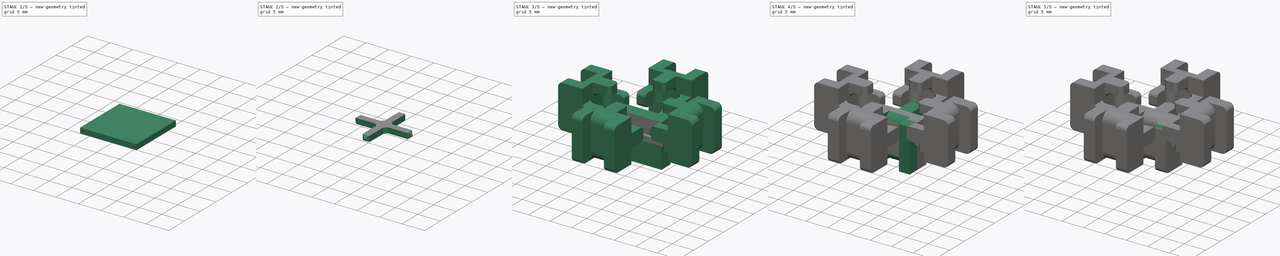
[diagram: build sequence overview — one tinted view per stage of 5, left to right]
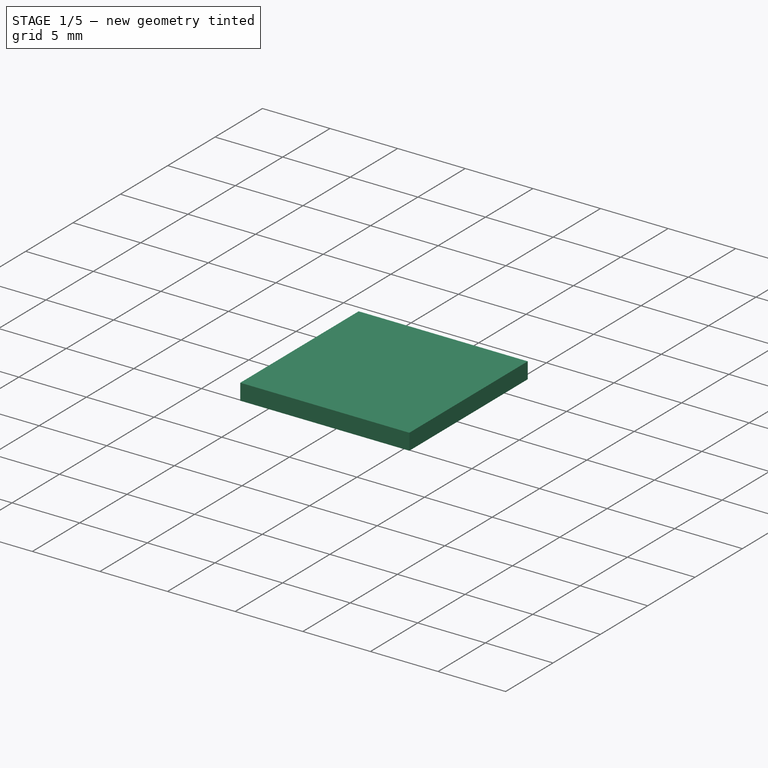
[diagram: stage 1 of 5 — iso view after this stage's code; geometry added in this stage tinted green]
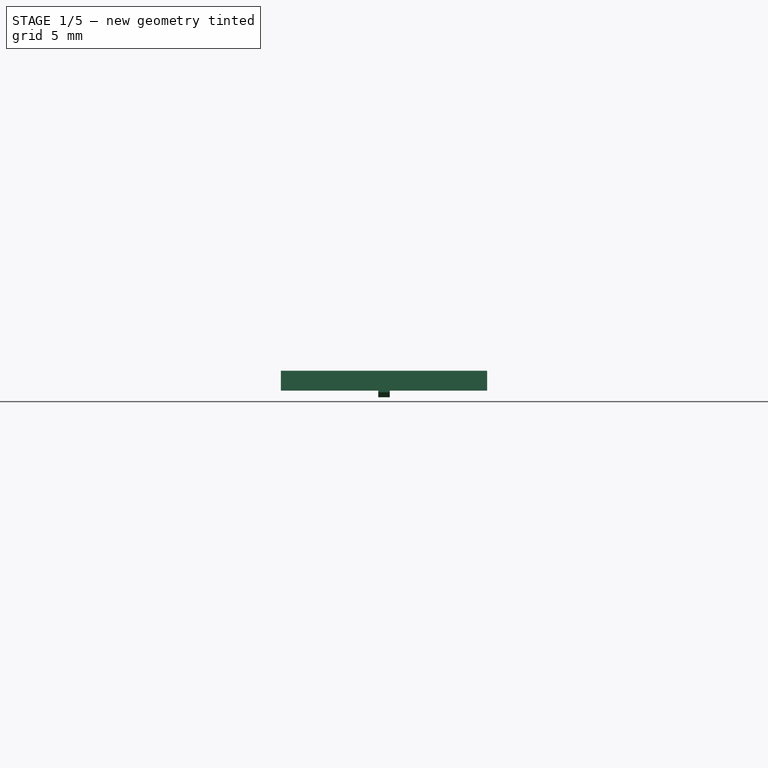
[diagram: stage 1 of 5 — front view after this stage's code; geometry added in this stage tinted green]
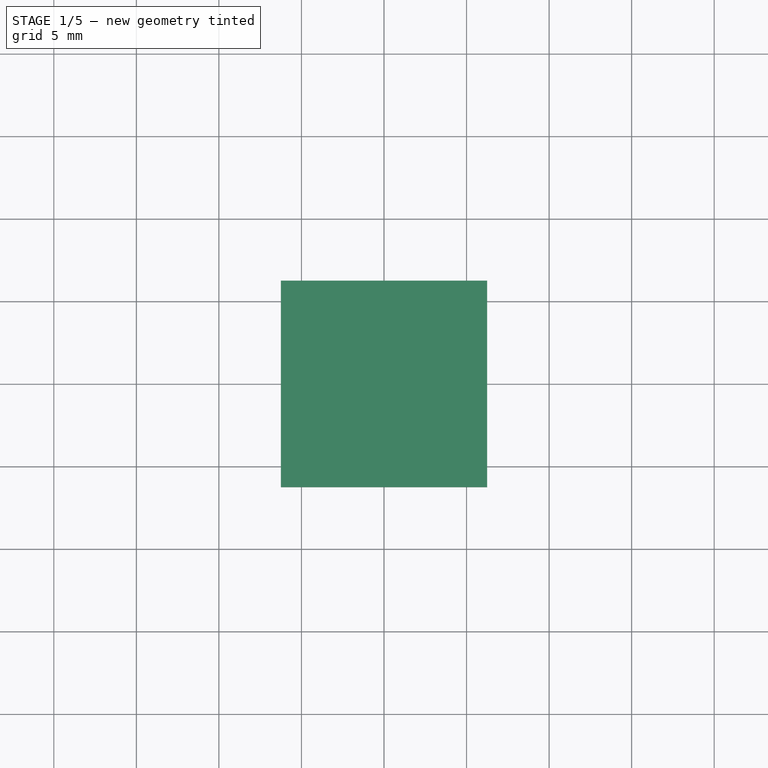
[diagram: stage 1 of 5 — top view after this stage's code; geometry added in this stage tinted green]
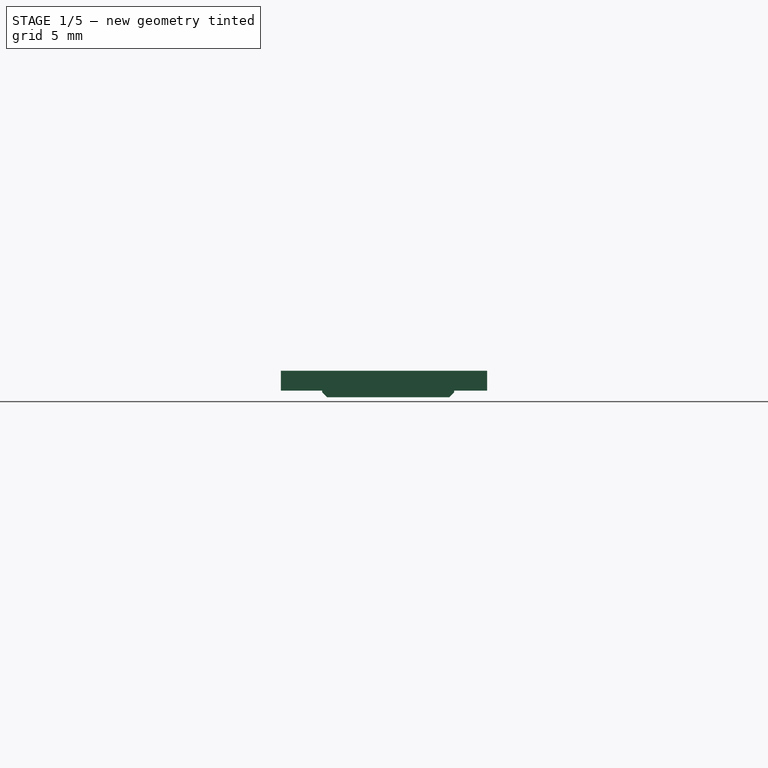
[diagram: stage 1 of 5 — right view after this stage's code; geometry added in this stage tinted green]
FCSTD DOCUMENT  (FreeCAD 0.14R3342 (Git))
Label: beam-stop
License: CC-BY 3.0
LicenseURL: http://creativecommons.org/licenses/by/3.0/
objects: Sketcher::SketchObject×4, PartDesign::Fillet×4, PartDesign::Pad×3, Part::Feature×3, PartDesign::Chamfer×3, Part::Box×2, Part::Fuse×2, Part::FeaturePython×1, PartDesign::Pocket×1
note: 27 computed .brp shape members not serialized (recipe doc carries the construction recipe); baked Part::Feature solids carry a one-line shape summary decoded from their .brp

FEATURE [Part::Box] Box001  label="Cube001"
  Height = 1.2
  Length = 12.5
  Placement = pos=(-6.25,-6.25,0.4) rot=(0,0,1;0rad)
  Width = 12.5
FEATURE [Sketcher::SketchObject] Sketch004
  Placement = pos=(-6.25,-6.25,0.4) rot=(1,0,0;3.14159rad)
  sketch-geometry (4):
    g0: LineSegment StartX=5.9 StartY=-2.5 StartZ=0 EndX=6.6 EndY=-2.5 EndZ=0
    g1: LineSegment StartX=6.6 StartY=-2.5 StartZ=0 EndX=6.6 EndY=-10.5 EndZ=0
    g2: LineSegment StartX=6.6 StartY=-10.5 StartZ=0 EndX=5.9 EndY=-10.5 EndZ=0
    g3: LineSegment StartX=5.9 StartY=-10.5 StartZ=0 EndX=5.9 EndY=-2.5 EndZ=0
  constraints (5):
    c: Coincident(g0,g1)
    c: Coincident(g1,g2)
    c: Coincident(g2,g3)
    c: Coincident(g3,g0)
    c: DistanceY(g-1,g0) = -2.5
FEATURE [PartDesign::Pad] Pad002
  Length = 0.4
  Length2 = 100
  Placement = pos=(-6.25,-6.25,0.4) rot=(1,0,0;3.14159rad)
  Sketch = -> Sketch004
  Type = 0
FEATURE [PartDesign::Chamfer] Chamfer002
  Base = -> Pad002 [Edge10,Edge4]
  Placement = pos=(-6.25,-6.25,0.4) rot=(1,0,0;3.14159rad)
  Size = 0.3
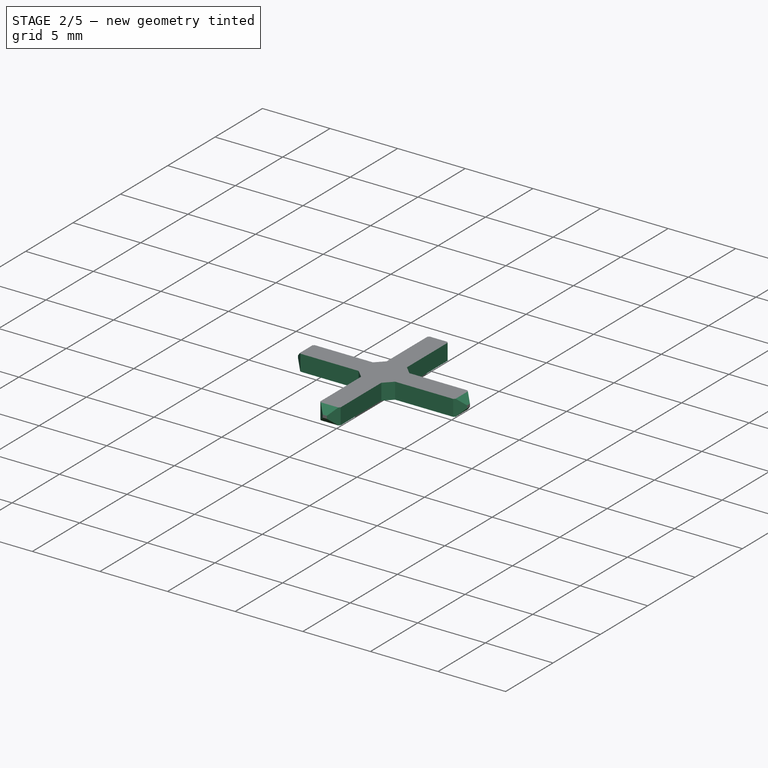
[diagram: stage 2 of 5 — iso view after this stage's code; geometry added in this stage tinted green]
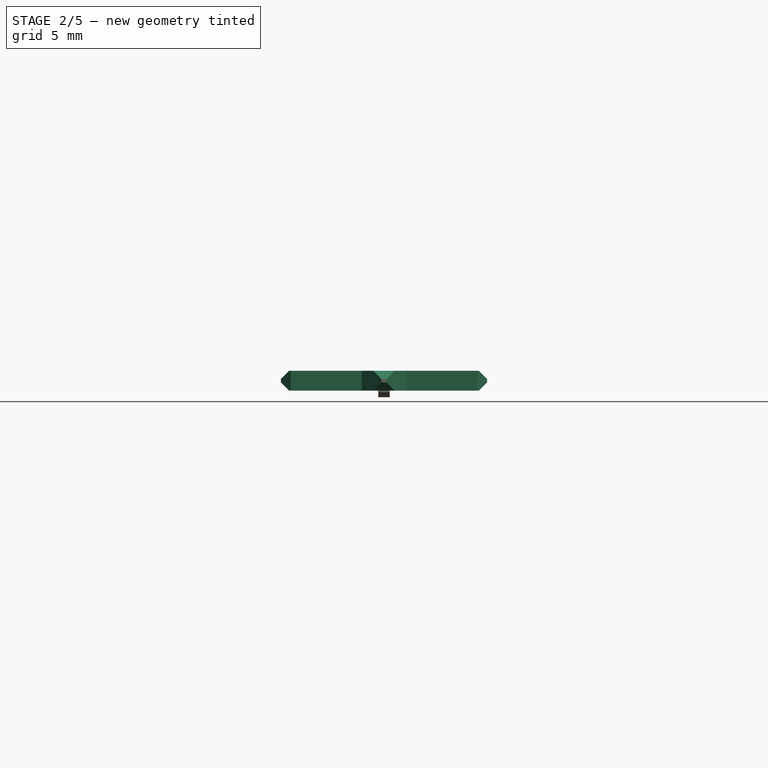
[diagram: stage 2 of 5 — front view after this stage's code; geometry added in this stage tinted green]
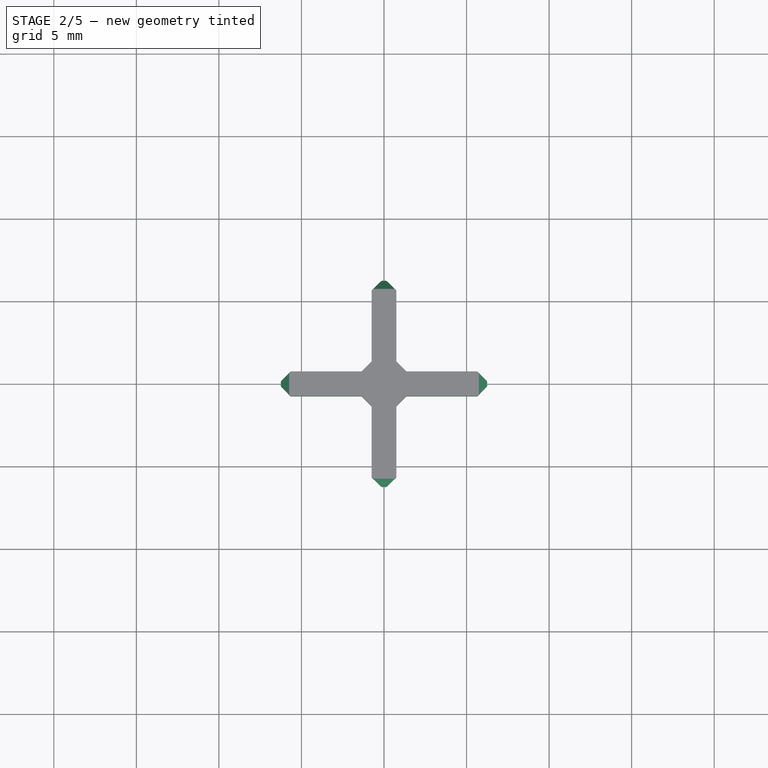
[diagram: stage 2 of 5 — top view after this stage's code; geometry added in this stage tinted green]
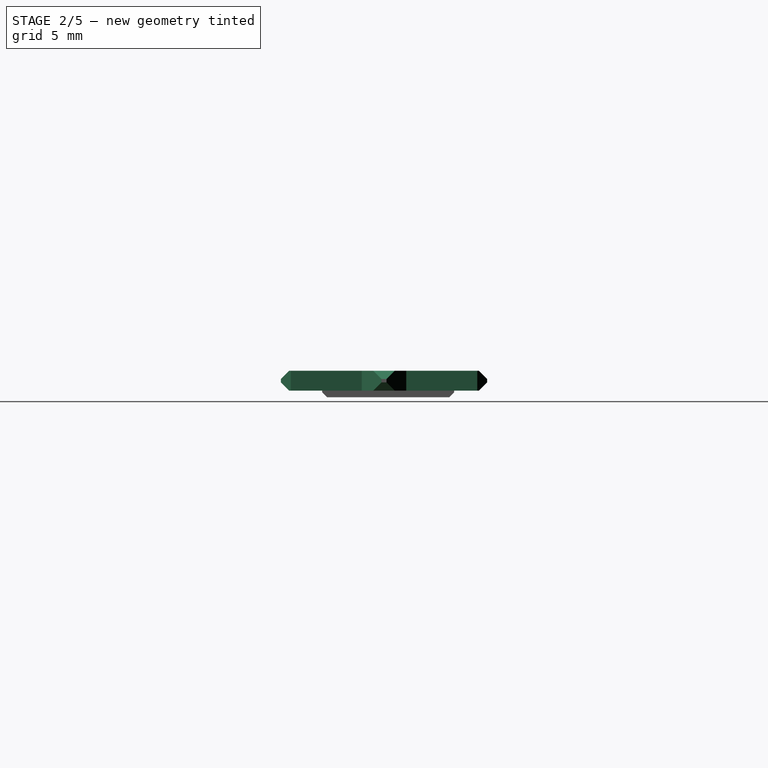
[diagram: stage 2 of 5 — right view after this stage's code; geometry added in this stage tinted green]
FEATURE [Sketcher::SketchObject] Sketch003
  ExternalGeometry = -> [Box001]
  Placement = pos=(-6.25,-6.25,0.4) rot=(1,0,0;3.14159rad)
  Support = -> Box001 [Face5]
  sketch-geometry (16):
    g0: LineSegment StartX=0 StartY=0 StartZ=0 EndX=5.5 EndY=0 EndZ=0
    g1: LineSegment StartX=5.5 StartY=0 StartZ=0 EndX=5.5 EndY=-5.5 EndZ=0
    g2: LineSegment StartX=5.5 StartY=-5.5 StartZ=0 EndX=0 EndY=-5.5 EndZ=0
    g3: LineSegment StartX=0 StartY=-5.5 StartZ=0 EndX=0 EndY=0 EndZ=0
    g4: LineSegment StartX=12.5 StartY=0 StartZ=0 EndX=7 EndY=0 EndZ=0
    g5: LineSegment StartX=7 StartY=0 StartZ=0 EndX=7 EndY=-5.5 EndZ=0
    g6: LineSegment StartX=7 StartY=-5.5 StartZ=0 EndX=12.5 EndY=-5.5 EndZ=0
    g7: LineSegment StartX=12.5 StartY=-5.5 StartZ=0 EndX=12.5 EndY=0 EndZ=0
    g8: LineSegment StartX=0 StartY=-12.5 StartZ=0 EndX=5.5 EndY=-12.5 EndZ=0
    g9: LineSegment StartX=5.5 StartY=-12.5 StartZ=0 EndX=5.5 EndY=-7 EndZ=0
    g10: LineSegment StartX=5.5 StartY=-7 StartZ=0 EndX=0 EndY=-7 EndZ=0
    g11: LineSegment StartX=0 StartY=-7 StartZ=0 EndX=0 EndY=-12.5 EndZ=0
    g12: LineSegment StartX=12.5 StartY=-12.5 StartZ=0 EndX=7 EndY=-12.5 EndZ=0
    g13: LineSegment StartX=7 StartY=-12.5 StartZ=0 EndX=7 EndY=-7 EndZ=0
    g14: LineSegment StartX=7 StartY=-7 StartZ=0 EndX=12.5 EndY=-7 EndZ=0
    g15: LineSegment StartX=12.5 StartY=-7 StartZ=0 EndX=12.5 EndY=-12.5 EndZ=0
  constraints (44):
    c: Coincident(g0,g1)
    c: Coincident(g1,g2)
    c: Coincident(g2,g3)
    c: Coincident(g3,g0)
    c: Horizontal(g0)
    c: Horizontal(g2)
    c: Vertical(g1)
    c: Vertical(g3)
    c: Coincident(g0,g-1)
    c: Coincident(g4,g5)
    c: Coincident(g5,g6)
    c: Coincident(g6,g7)
    c: Coincident(g7,g4)
    c: Horizontal(g4)
    c: Horizontal(g6)
    c: Vertical(g5)
    c: Vertical(g7)
    c: Coincident(g8,g9)
    c: Coincident(g9,g10)
    c: Coincident(g10,g11)
    c: Coincident(g11,g8)
    c: Horizontal(g8)
    c: Horizontal(g10)
    c: Vertical(g9)
    c: Vertical(g11)
    c: Coincident(g8,g-4)
    c: Coincident(g12,g13)
    c: Coincident(g13,g14)
    c: Coincident(g14,g15)
    c: Coincident(g15,g12)
    c: Horizontal(g12)
    c: Horizontal(g14)
    c: Vertical(g13)
    c: Vertical(g15)
    c: Coincident(g12,g-4)
    c: Equal(g10,g2)
    c: Equal(g2,g1)
    c: Equal(g1,g5)
    c: Equal(g5,g6)
    c: Equal(g6,g14)
    c: Equal(g14,g13)
    c: Equal(g13,g9)
    c: Coincident(g4,g-3)
    c: DistanceX(g1,g5) = 1.5
FEATURE [PartDesign::Pocket] Pocket
  Length = 5
  Placement = pos=(-6.25,-6.25,0.4) rot=(0,0,1;0rad)
  Sketch = -> Sketch003
  Type = 1
FEATURE [PartDesign::Chamfer] Chamfer
  Base = -> Pocket [Edge29,Edge36,Edge1,Edge3,Edge7,Edge19,Edge32,Edge31,Edge30,Edge33,Edge34,Edge35]
  Placement = pos=(-6.25,-6.25,0.4) rot=(0,0,1;0rad)
  Size = 0.6
FEATURE [PartDesign::Chamfer] Chamfer001
  Base = -> Chamfer [Edge52,Edge27,Edge40,Edge15,Edge4,Edge1,Edge41,Edge16]
  Placement = pos=(-6.25,-6.25,0.4) rot=(0,0,1;0rad)
  Size = 0.5
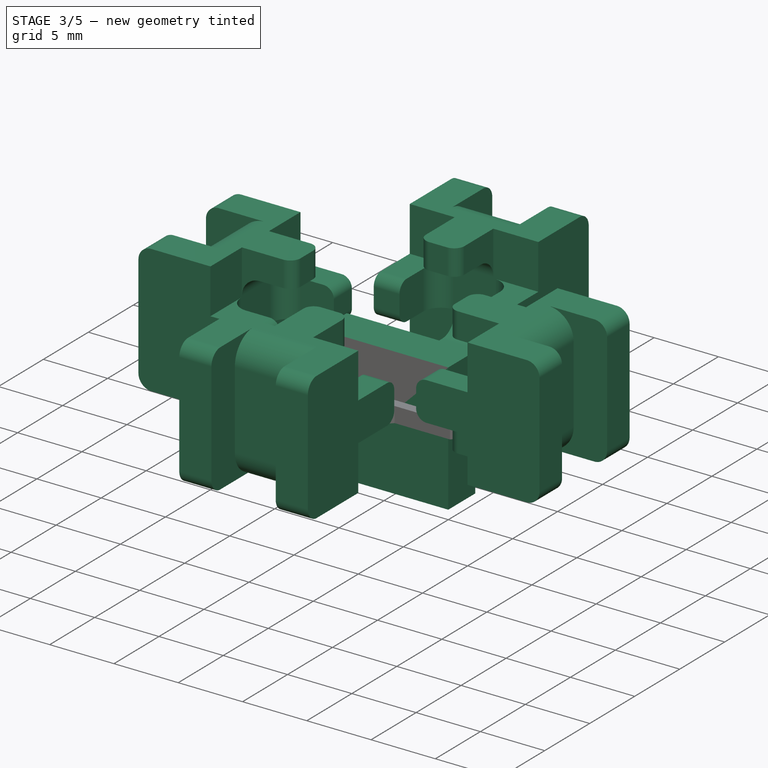
[diagram: stage 3 of 5 — iso view after this stage's code; geometry added in this stage tinted green]
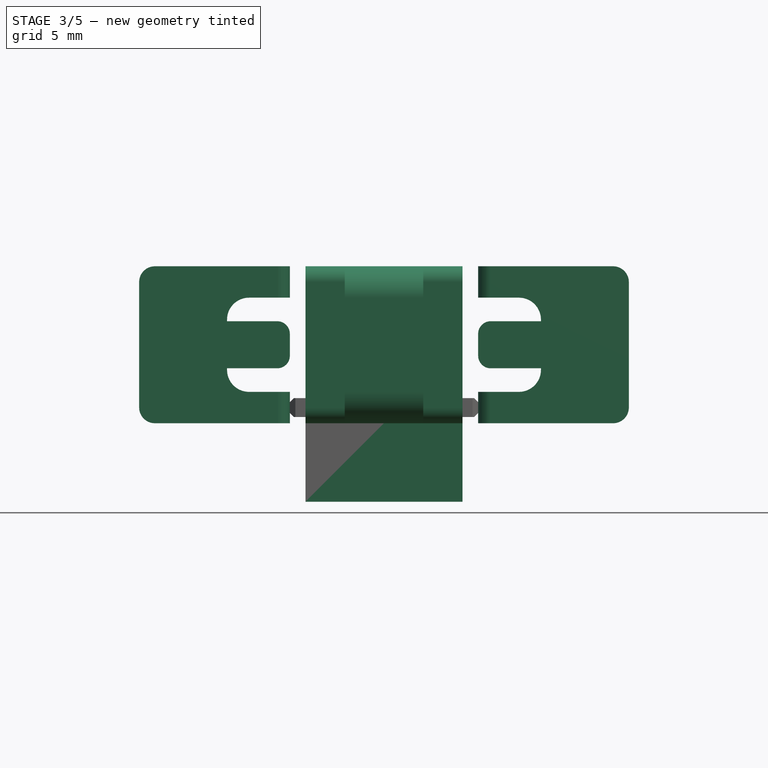
[diagram: stage 3 of 5 — front view after this stage's code; geometry added in this stage tinted green]
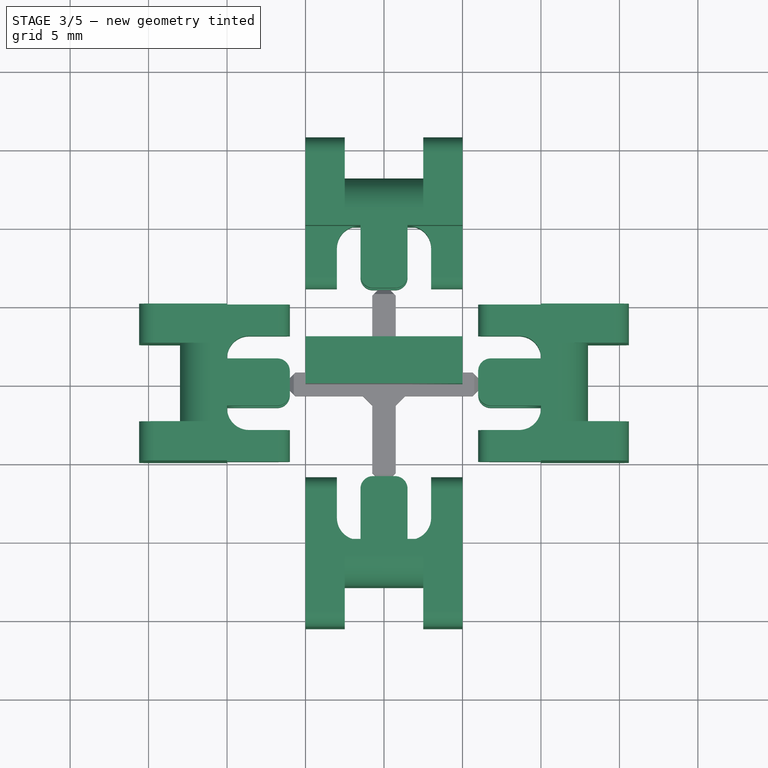
[diagram: stage 3 of 5 — top view after this stage's code; geometry added in this stage tinted green]
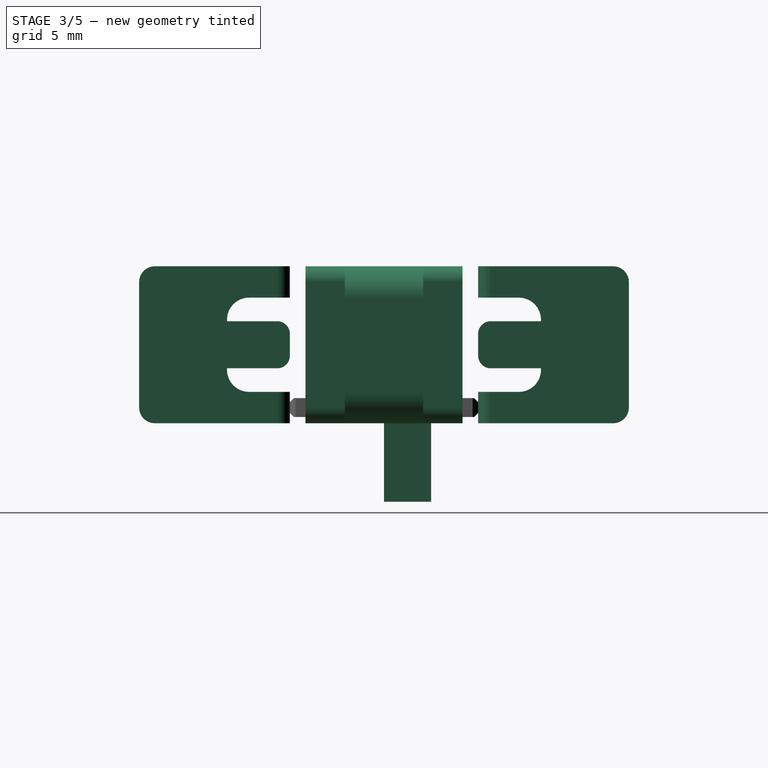
[diagram: stage 3 of 5 — right view after this stage's code; geometry added in this stage tinted green]
FEATURE [Part::Box] Box  label="Cube"
  Height = 10
  Length = 10
  Placement = pos=(-5,0,-5) rot=(0,0,1;0rad)
  Width = 3
FEATURE [Part::Feature] Fillet003001_solid  label="End stop refined (Solid)"
  Placement = pos=(13,0,5) rot=(0,0,1;1.5708rad)
  shape: bbox 9.6 x 10 x 10 mm, 44 faces (baked)
FEATURE [Part::FeaturePython] Array  # Draft array (typed FeaturePython)
  Angle = 360
  ArrayType = 1
  Axis = (0,0,1)
  Base = -> Fillet003001_solid
  Center = (0,0,0)
  IntervalX = (1,0,0)
  IntervalY = (0,1,0)
  IntervalZ = (0,0,1)
  NumberPolar = 4
  NumberX = 2
  NumberY = 2
  NumberZ = 1
FEATURE [Part::Fuse] Fusion  label="Sprue"
  Base = -> Chamfer001
  Tool = -> Chamfer002
FEATURE [Part::Fuse] Fusion003
  Base = -> Array
  Tool = -> Fusion
FEATURE [Part::Feature] Fusion003_solid  label="Fusion003 (Solid)"
  shape: bbox 31.2 x 31.2 x 10 mm, 213 faces (baked)
FEATURE [Part::Feature] Fusion003_solid001  label="Fusion Refined"
  shape: bbox 31.2 x 31.2 x 10 mm, 213 faces (baked)
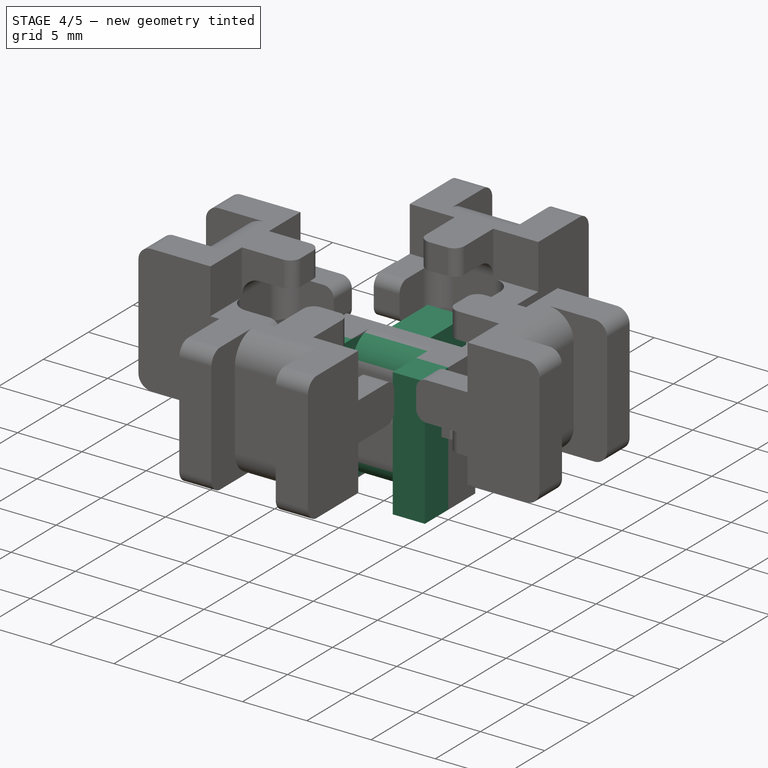
[diagram: stage 4 of 5 — iso view after this stage's code; geometry added in this stage tinted green]
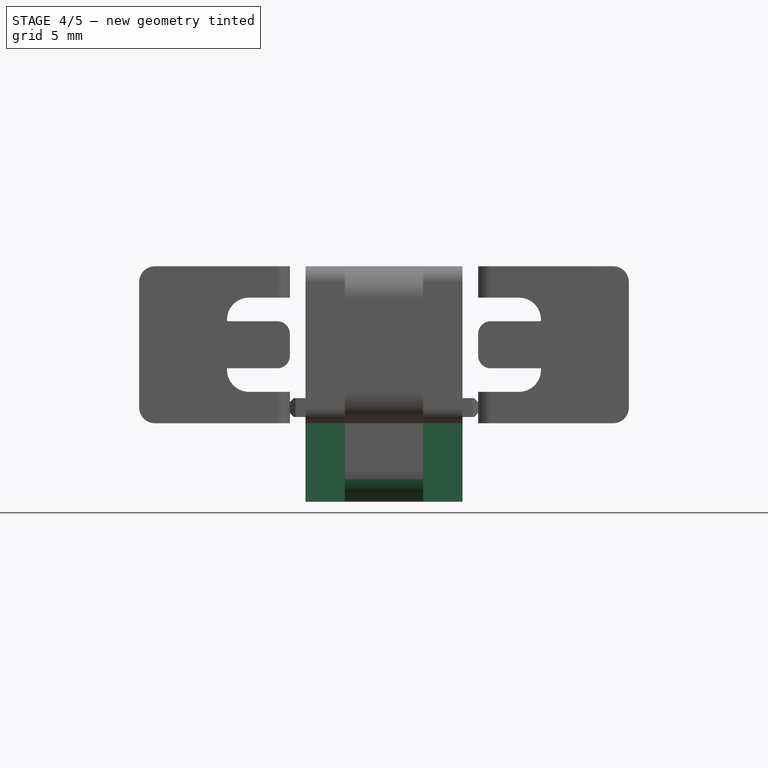
[diagram: stage 4 of 5 — front view after this stage's code; geometry added in this stage tinted green]
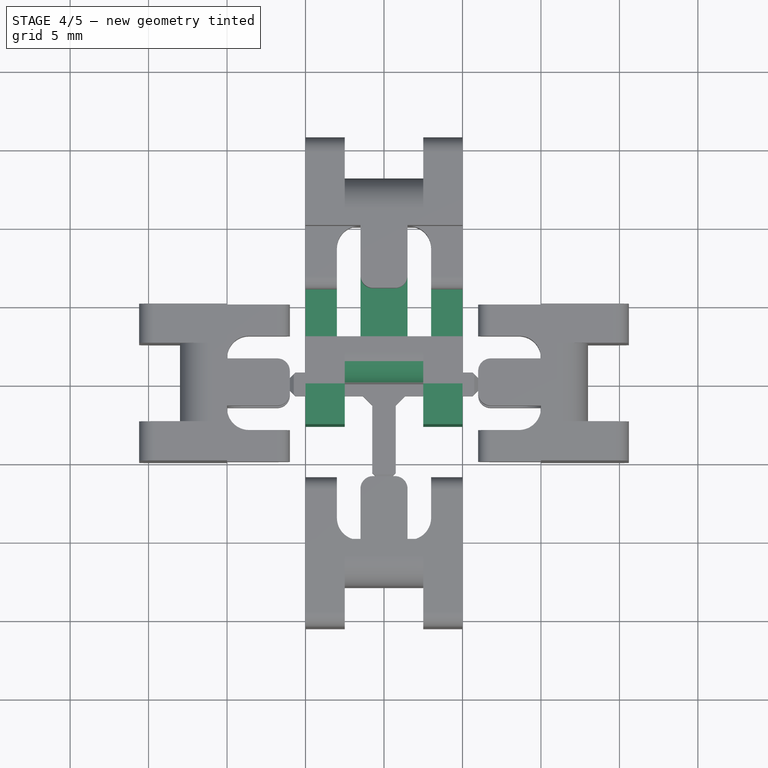
[diagram: stage 4 of 5 — top view after this stage's code; geometry added in this stage tinted green]
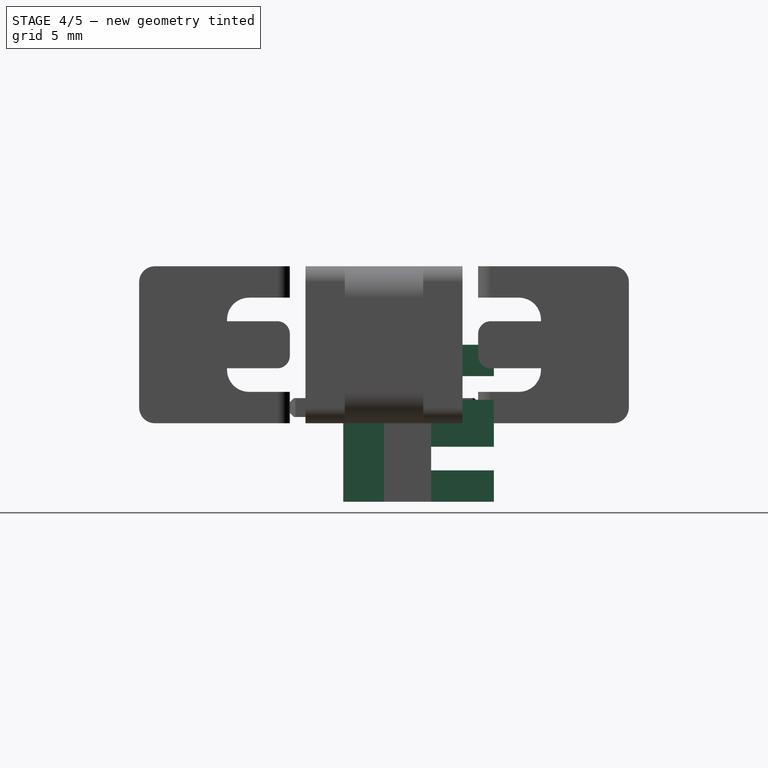
[diagram: stage 4 of 5 — right view after this stage's code; geometry added in this stage tinted green]
FEATURE [Sketcher::SketchObject] Sketch
  ExternalGeometry = -> [Box]
  Placement = pos=(-5,3,-5) rot=(0,0.707107,0.707107;3.14159rad)
  Support = -> Box [Face4]
  sketch-geometry (16):
    g0: LineSegment StartX=-6.5 StartY=10 StartZ=0 EndX=-3.5 EndY=10 EndZ=0
    g1: LineSegment StartX=-3.5 StartY=10 StartZ=0 EndX=-3.5 EndY=8 EndZ=0
    g2: LineSegment StartX=-3.5 StartY=8 StartZ=0 EndX=-6.5 EndY=8 EndZ=0
    g3: LineSegment StartX=-6.5 StartY=8 StartZ=0 EndX=-6.5 EndY=10 EndZ=0
    g4: LineSegment StartX=-10 StartY=6.5 StartZ=0 EndX=-8 EndY=6.5 EndZ=0
    g5: LineSegment StartX=-8 StartY=6.5 StartZ=0 EndX=-8 EndY=3.5 EndZ=0
    g6: LineSegment StartX=-8 StartY=3.5 StartZ=0 EndX=-10 EndY=3.5 EndZ=0
    g7: LineSegment StartX=-10 StartY=3.5 StartZ=0 EndX=-10 EndY=6.5 EndZ=0
    g8: LineSegment StartX=-2 StartY=6.5 StartZ=0 EndX=0 EndY=6.5 EndZ=0
    g9: LineSegment StartX=0 StartY=6.5 StartZ=0 EndX=0 EndY=3.5 EndZ=0
    g10: LineSegment StartX=0 StartY=3.5 StartZ=0 EndX=-2 EndY=3.5 EndZ=0
    g11: LineSegment StartX=-2 StartY=3.5 StartZ=0 EndX=-2 EndY=6.5 EndZ=0
    g12: LineSegment StartX=-6.5 StartY=2 StartZ=0 EndX=-3.5 EndY=2 EndZ=0
    g13: LineSegment StartX=-3.5 StartY=2 StartZ=0 EndX=-3.5 EndY=0 EndZ=0
    g14: LineSegment StartX=-3.5 StartY=0 StartZ=0 EndX=-6.5 EndY=0 EndZ=0
    g15: LineSegment StartX=-6.5 StartY=0 StartZ=0 EndX=-6.5 EndY=2 EndZ=0
  constraints (48):
    c: Coincident(g0,g1)
    c: Coincident(g1,g2)
    c: Coincident(g2,g3)
    c: Coincident(g3,g0)
    c: Horizontal(g0)
    c: Horizontal(g2)
    c: Vertical(g1)
    c: Vertical(g3)
    c: Coincident(g4,g5)
    c: Coincident(g5,g6)
    c: Coincident(g6,g7)
    c: Coincident(g7,g4)
    c: Horizontal(g4)
    c: Horizontal(g6)
    c: Vertical(g5)
    c: Vertical(g7)
    c: Coincident(g8,g9)
    c: Coincident(g9,g10)
    c: Coincident(g10,g11)
    c: Coincident(g11,g8)
    c: Horizontal(g8)
    c: Horizontal(g10)
    c: Vertical(g9)
    c: Vertical(g11)
    c: Coincident(g12,g13)
    c: Coincident(g13,g14)
    c: Coincident(g14,g15)
    c: Coincident(g15,g12)
    c: Horizontal(g12)
    c: Horizontal(g14)
    c: Vertical(g13)
    c: Vertical(g15)
    c: Equal(g2,g5)
    c: Equal(g5,g12)
    c: Equal(g12,g11)
    c: Equal(g3,g8)
    c: Equal(g8,g4)
    c: Equal(g4,g15)
    c: PointOnObject(g0,g-3)
    c: PointOnObject(g4,g-4)
    c: PointOnObject(g8,g-6)
    c: PointOnObject(g13,g-5)
    c: DistanceY(g1) = -2
    c: DistanceX(g0) = 3
    c: DistanceX(g0,g-6) = 3.5
    c: DistanceY(g8,g-6) = 3.5
    c: DistanceY(g4,g-4) = 3.5
    c: DistanceX(g-5,g14) = 3.5
FEATURE [PartDesign::Pad] Pad
  Length = 4
  Length2 = 100
  Placement = pos=(-5,0,-5) rot=(0,0,1;0rad)
  Sketch = -> Sketch
  Type = 0
FEATURE [Sketcher::SketchObject] Sketch001
  ExternalGeometry = -> [Pad]
  Placement = pos=(-5,0,-5) rot=(1,0,0;1.5708rad)
  Support = -> Pad [Face1]
  sketch-geometry (8):
    g0: LineSegment StartX=0 StartY=10 StartZ=0 EndX=2.5 EndY=10 EndZ=0
    g1: LineSegment StartX=2.5 StartY=10 StartZ=0 EndX=2.5 EndY=0 EndZ=0
    g2: LineSegment StartX=2.5 StartY=0 StartZ=0 EndX=0 EndY=0 EndZ=0
    g3: LineSegment StartX=0 StartY=0 StartZ=0 EndX=0 EndY=10 EndZ=0
    g4: LineSegment StartX=7.5 StartY=10 StartZ=0 EndX=10 EndY=10 EndZ=0
    g5: LineSegment StartX=10 StartY=10 StartZ=0 EndX=10 EndY=0 EndZ=0
    g6: LineSegment StartX=10 StartY=0 StartZ=0 EndX=7.5 EndY=0 EndZ=0
    g7: LineSegment StartX=7.5 StartY=0 StartZ=0 EndX=7.5 EndY=10 EndZ=0
  constraints (23):
    c: Coincident(g0,g1)
    c: Coincident(g1,g2)
    c: Coincident(g2,g3)
    c: Coincident(g3,g0)
    c: Horizontal(g0)
    c: Horizontal(g2)
    c: Vertical(g1)
    c: Vertical(g3)
    c: PointOnObject(g0,g-2)
    c: PointOnObject(g1,g-1)
    c: Coincident(g4,g5)
    c: Coincident(g5,g6)
    c: Coincident(g6,g7)
    c: Coincident(g7,g4)
    c: Horizontal(g4)
    c: Horizontal(g6)
    c: Vertical(g5)
    c: Vertical(g7)
    c: Equal(g0,g4)
    c: Equal(g5,g1)
    c: PointOnObject(g6,g-1)
    c: DistanceX(g4) = 2.5
    c: Coincident(g4,g-3)
FEATURE [PartDesign::Pad] Pad001
  Length = 2.6
  Length2 = 100
  Placement = pos=(-5,0,-5) rot=(0,0,1;0rad)
  Sketch = -> Sketch001
  Type = 0
FEATURE [PartDesign::Fillet] Fillet
  Base = -> Pad001 [Edge23,Edge46]
  Placement = pos=(-5,0,-5) rot=(0,0,1;0rad)
  Radius = 2
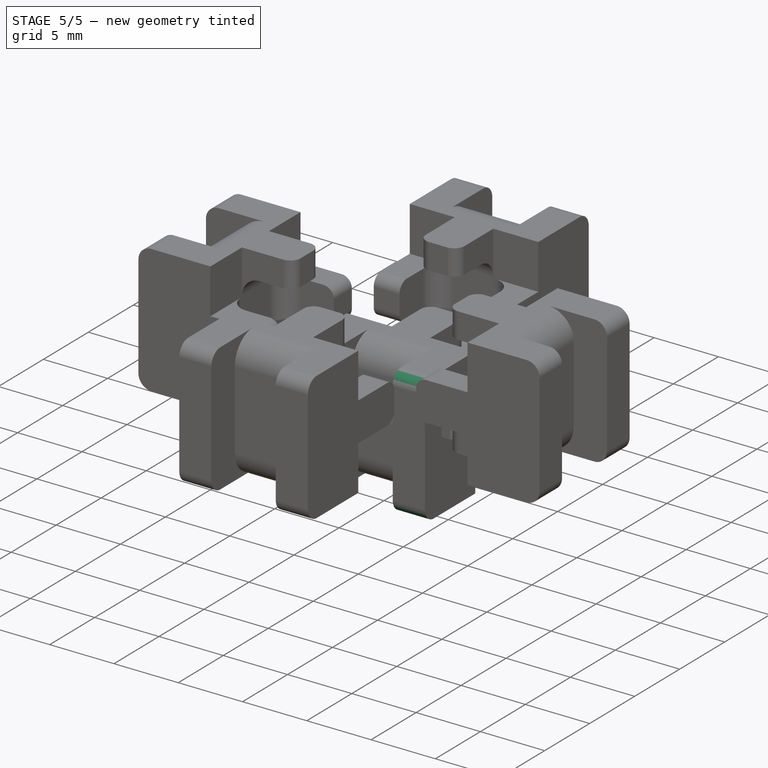
[diagram: stage 5 of 5 — iso view after this stage's code; geometry added in this stage tinted green]
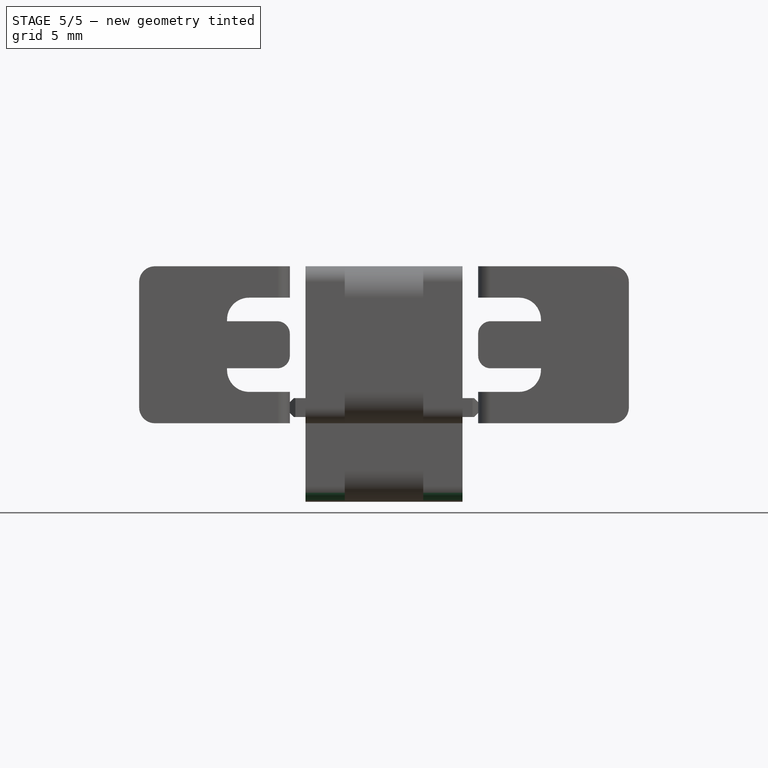
[diagram: stage 5 of 5 — front view after this stage's code; geometry added in this stage tinted green]
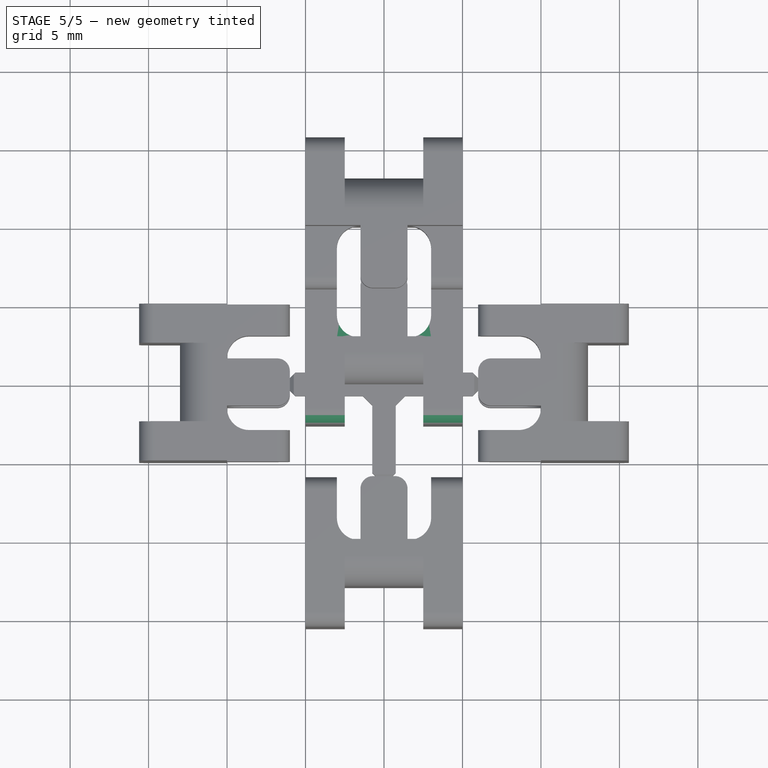
[diagram: stage 5 of 5 — top view after this stage's code; geometry added in this stage tinted green]
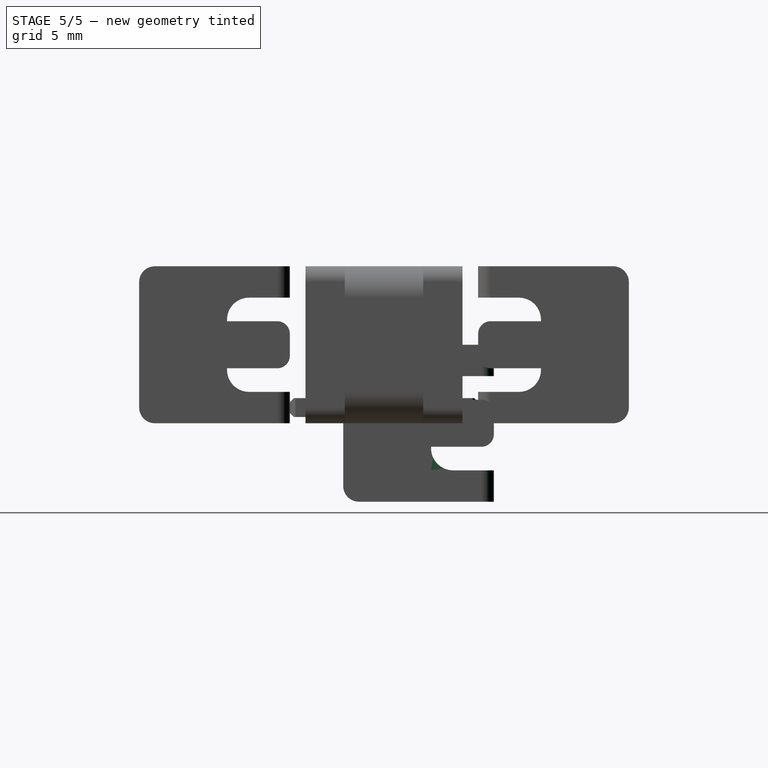
[diagram: stage 5 of 5 — right view after this stage's code; geometry added in this stage tinted green]
FEATURE [PartDesign::Fillet] Fillet001
  Base = -> Fillet [Edge77,Edge82,Edge84,Edge89,Edge91,Edge94,Edge72,Edge75]
  Placement = pos=(-5,0,-5) rot=(0,0,1;0rad)
  Radius = 0.8
FEATURE [PartDesign::Fillet] Fillet002
  Base = -> Fillet001 [Edge50,Edge64,Edge106,Edge101]
  Placement = pos=(-5,0,-5) rot=(0,0,1;0rad)
  Radius = 1
FEATURE [PartDesign::Fillet] Fillet003
  Base = -> Fillet002 [Edge53,Edge64,Edge57,Edge61]
  Placement = pos=(-5,0,-5) rot=(0,0,1;0rad)
  Radius = 1.4
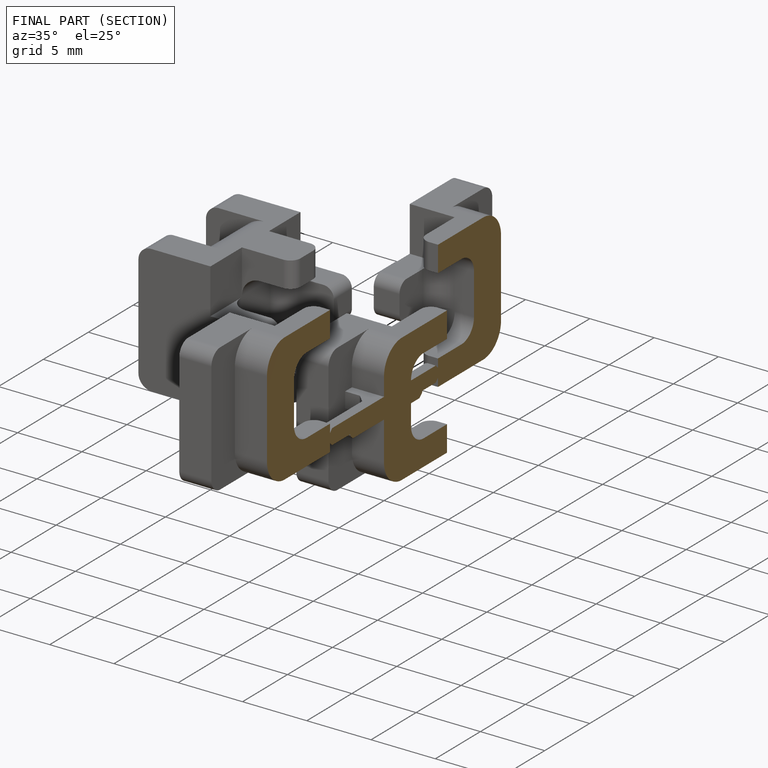
[diagram: finished part — half-section view (interior)]
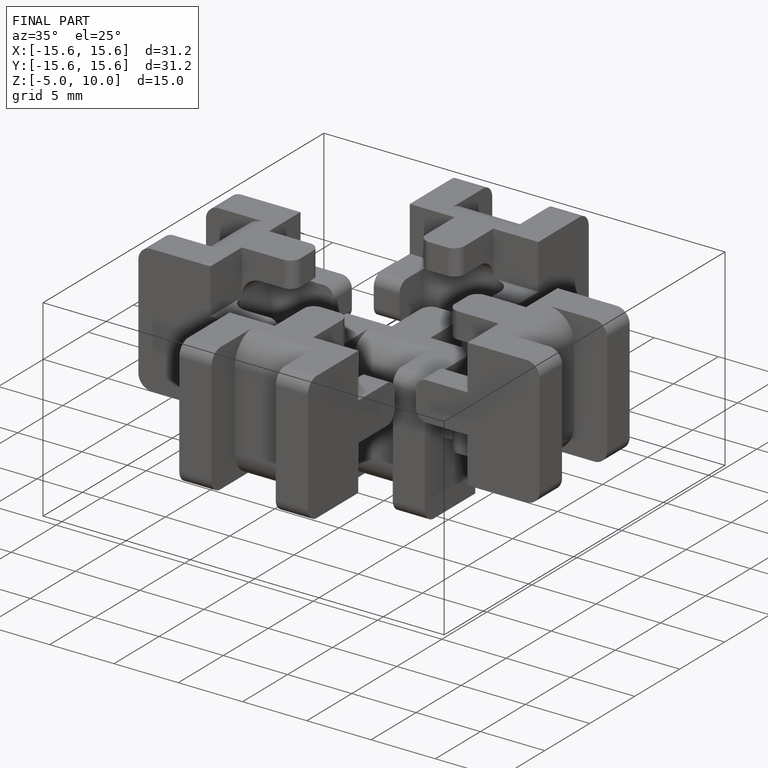
[diagram: finished part — iso view with bounding-box wireframe]
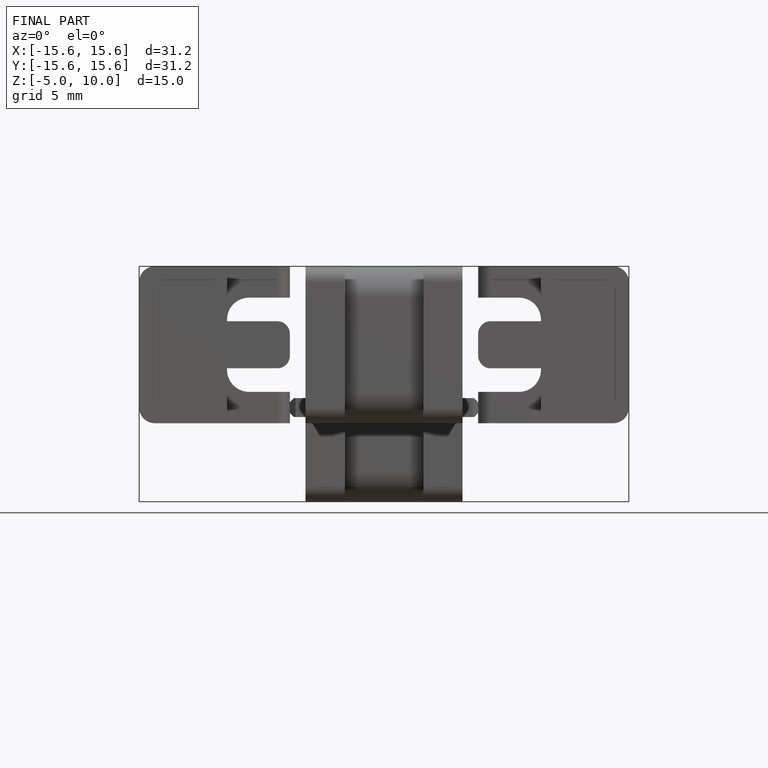
[diagram: finished part — front view with bounding-box wireframe]
